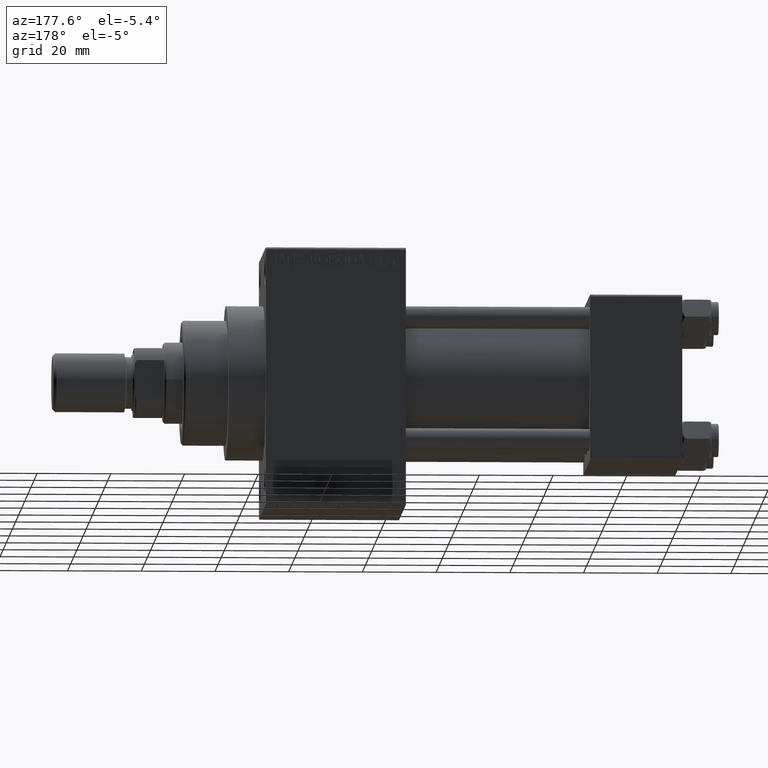
[diagram: clean part render]
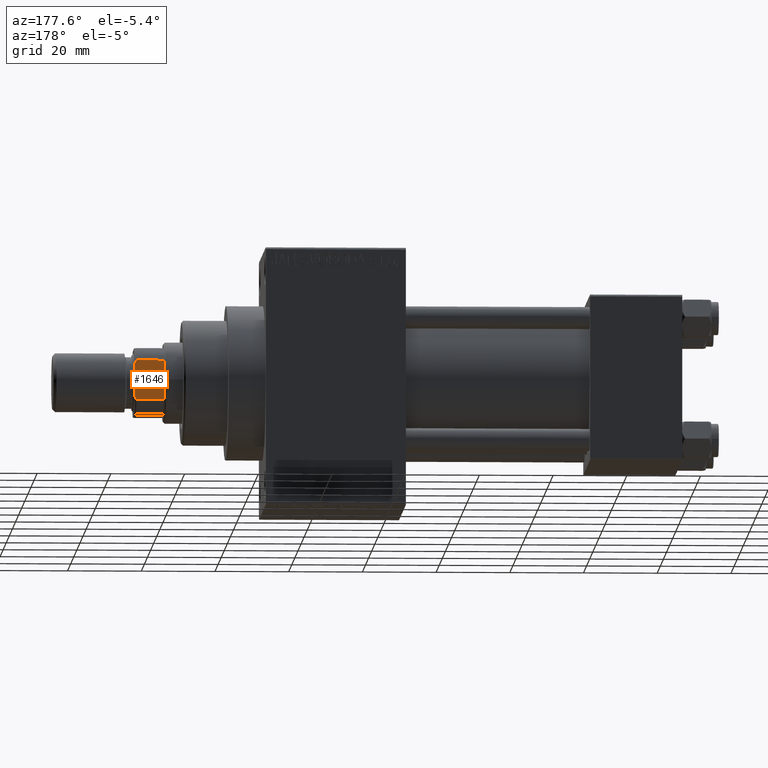
[diagram: same view with one face highlighted and labeled with its STEP entity id]
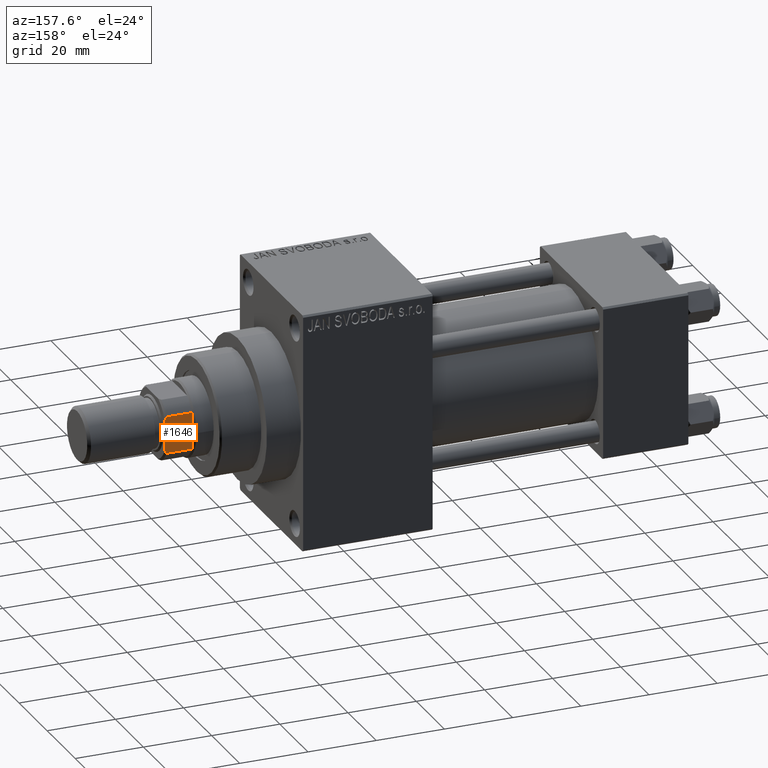
[diagram: same view with one face highlighted and labeled with its STEP entity id]
A machine part, auxiliary view. The second image highlights one B-rep face of the part: STEP entity #1646.
A second angle (auxiliary view) of the same face is appended — the face is thin or edge-on in the first view.
In plain terms, the highlighted planar face has unit normal (0, -1, -0).
Its self-contained STEP definition (entity closure, byte-faithful):
#1436 = PLANE ( 'NONE',  #7749 ) ;
#1646 = ADVANCED_FACE ( 'NONE', ( #5260 ), #1436, .F. ) ;
#3653 = EDGE_CURVE ( 'NONE', #16146, #26958, #16058, .T. ) ;
#5203 = CARTESIAN_POINT ( 'NONE',  ( -9.000000000000003553, -4.358898943540665094, 123.0000000000000000 ) ) ;
#5260 = FACE_OUTER_BOUND ( 'NONE', #16971, .T. ) ;
#6469 = CARTESIAN_POINT ( 'NONE',  ( -9.000000000000000000, -5.408326913195987018, 115.0000000000000284 ) ) ;
#6575 = EDGE_CURVE ( 'NONE', #40749, #23385, #8210, .T. ) ;
#7036 = DIRECTION ( 'NONE',  ( 9.637352644315595243E-17, -1.000000000000000000, 0.000000000000000000 ) ) ;
#7417 = ORIENTED_EDGE ( 'NONE', *, *, #6575, .T. ) ;
#7749 = AXIS2_PLACEMENT_3D ( 'NONE', #12000, #31269, #8857 ) ;
#7789 = CARTESIAN_POINT ( 'NONE',  ( -8.999999999999996447, 5.408326913195988794, 115.0000000000000284 ) ) ;
#8210 = LINE ( 'NONE', #29662, #15610 ) ;
#8857 = DIRECTION ( 'NONE',  ( -9.637352644315595243E-17, 1.000000000000000000, 0.000000000000000000 ) ) ;
#9698 = CARTESIAN_POINT ( 'NONE',  ( -8.999999999999996447, 5.408326913195991459, 122.5000000000000000 ) ) ;
#10543 = B_SPLINE_CURVE_WITH_KNOTS ( 'NONE', 3,
 ( #20149, #34839, #16531, #15828 ),
 .UNSPECIFIED., .F., .F.,
 ( 4, 4 ),
 ( 0.000000000000000000, 0.001162453897363199297 ),
 .UNSPECIFIED. ) ;
#12000 = CARTESIAN_POINT ( 'NONE',  ( -9.000000000000003553, 8.999999999999998224, 123.0000000000000000 ) ) ;
#12147 = VERTEX_POINT ( 'NONE', #7789 ) ;
#13311 = CARTESIAN_POINT ( 'NONE',  ( -9.000000000000001776, 4.714305797500244921, 122.8450817439748448 ) ) ;
#15205 = DIRECTION ( 'NONE',  ( -0.000000000000000000, -0.000000000000000000, 1.000000000000000000 ) ) ;
#15610 = VECTOR ( 'NONE', #15205, 1000.000000000000000 ) ;
#15828 = CARTESIAN_POINT ( 'NONE',  ( -9.000000000000003553, -4.358898943540665094, 123.0000000000000000 ) ) ;
#16058 = LINE ( 'NONE', #38234, #23188 ) ;
#16146 = VERTEX_POINT ( 'NONE', #18731 ) ;
#16531 = CARTESIAN_POINT ( 'NONE',  ( -9.000000000000001776, -4.714305797500246697, 122.8450817439748448 ) ) ;
#16971 = EDGE_LOOP ( 'NONE', ( #7417, #25429, #36914, #35520, #35997, #21030 ) ) ;
#18731 = CARTESIAN_POINT ( 'NONE',  ( -9.000000000000003553, 4.358898943540662430, 123.0000000000000000 ) ) ;
#20149 = CARTESIAN_POINT ( 'NONE',  ( -9.000000000000000000, -5.408326913195987018, 122.5000000000000000 ) ) ;
#20228 = CARTESIAN_POINT ( 'NONE',  ( -9.000000000000000000, -5.408326913195987018, 122.5000000000000000 ) ) ;
#20267 = EDGE_CURVE ( 'NONE', #16146, #43384, #35312, .T. ) ;
#21030 = ORIENTED_EDGE ( 'NONE', *, *, #34335, .T. ) ;
#21475 = LINE ( 'NONE', #43172, #29371 ) ;
#23188 = VECTOR ( 'NONE', #34139, 1000.000000000000000 ) ;
#23282 = VECTOR ( 'NONE', #7036, 1000.000000000000000 ) ;
#23385 = VERTEX_POINT ( 'NONE', #20228 ) ;
#25429 = ORIENTED_EDGE ( 'NONE', *, *, #39486, .T. ) ;
#26958 = VERTEX_POINT ( 'NONE', #5203 ) ;
#29371 = VECTOR ( 'NONE', #32117, 1000.000000000000000 ) ;
#29662 = CARTESIAN_POINT ( 'NONE',  ( -9.000000000000000000, -5.408326913195987018, -0.001000000000001000089 ) ) ;
#31269 = DIRECTION ( 'NONE',  ( 1.000000000000000000, 9.637352644315595243E-17, -0.000000000000000000 ) ) ;
#31641 = CARTESIAN_POINT ( 'NONE',  ( -9.000000000000003553, 4.358898943540662430, 123.0000000000000000 ) ) ;
#32117 = DIRECTION ( 'NONE',  ( -0.000000000000000000, -0.000000000000000000, 1.000000000000000000 ) ) ;
#32255 = EDGE_CURVE ( 'NONE', #12147, #43384, #21475, .T. ) ;
#34139 = DIRECTION ( 'NONE',  ( 9.637352644315595243E-17, -1.000000000000000000, 0.000000000000000000 ) ) ;
#34335 = EDGE_CURVE ( 'NONE', #12147, #40749, #40064, .T. ) ;
#34839 = CARTESIAN_POINT ( 'NONE',  ( -9.000000000000000000, -5.063687070142446345, 122.6775166608139216 ) ) ;
#35312 = B_SPLINE_CURVE_WITH_KNOTS ( 'NONE', 3,
 ( #31641, #13311, #44979, #9698 ),
 .UNSPECIFIED., .F., .F.,
 ( 4, 4 ),
 ( 0.000000000000000000, 0.001162453897363206236 ),
 .UNSPECIFIED. ) ;
#35520 = ORIENTED_EDGE ( 'NONE', *, *, #20267, .T. ) ;
#35997 = ORIENTED_EDGE ( 'NONE', *, *, #32255, .F. ) ;
#36436 = CARTESIAN_POINT ( 'NONE',  ( -9.000000000000003553, 8.999999999999998224, 115.0000000000000000 ) ) ;
#36914 = ORIENTED_EDGE ( 'NONE', *, *, #3653, .F. ) ;
#38234 = CARTESIAN_POINT ( 'NONE',  ( -9.000000000000003553, 8.999999999999998224, 123.0000000000000000 ) ) ;
#39486 = EDGE_CURVE ( 'NONE', #23385, #26958, #10543, .T. ) ;
#40064 = LINE ( 'NONE', #36436, #23282 ) ;
#40749 = VERTEX_POINT ( 'NONE', #6469 ) ;
#43172 = CARTESIAN_POINT ( 'NONE',  ( -8.999999999999996447, 5.408326913195991459, -0.001000000000001000089 ) ) ;
#43384 = VERTEX_POINT ( 'NONE', #44770 ) ;
#44770 = CARTESIAN_POINT ( 'NONE',  ( -8.999999999999996447, 5.408326913195991459, 122.5000000000000000 ) ) ;
#44979 = CARTESIAN_POINT ( 'NONE',  ( -9.000000000000003553, 5.063687070142450786, 122.6775166608139216 ) ) ;